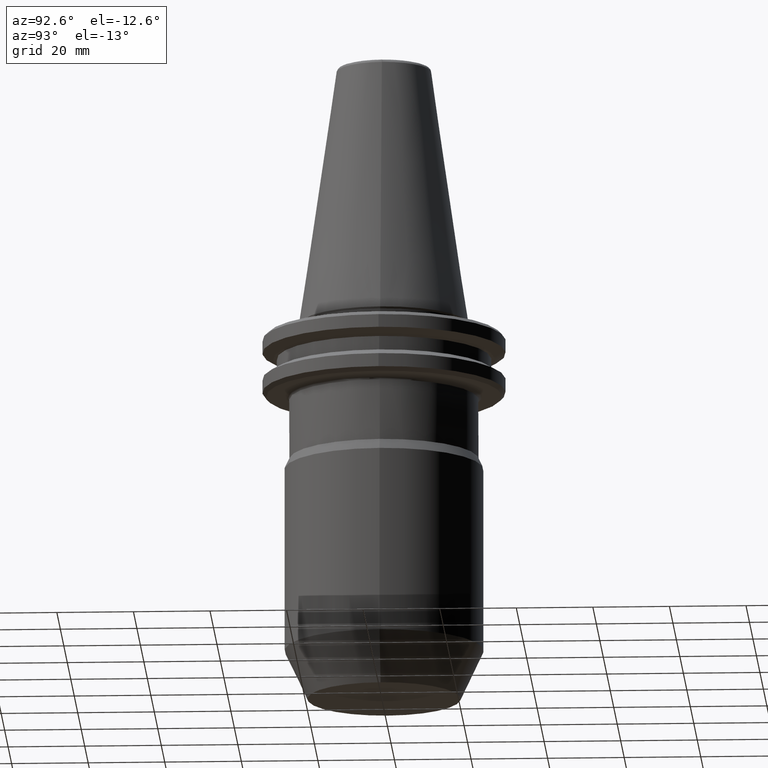
[diagram: clean part render]
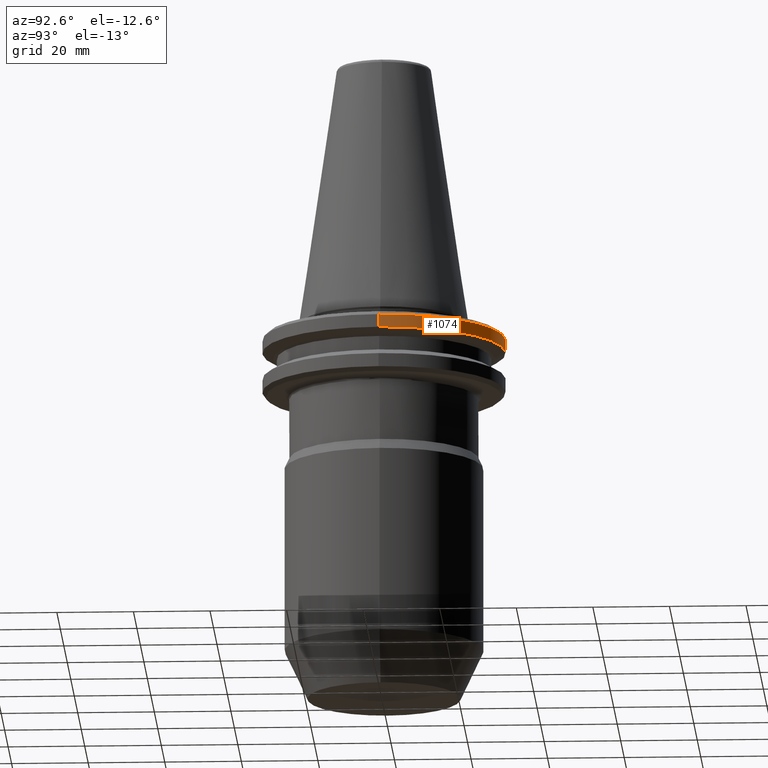
[diagram: same view with one face highlighted and labeled with its STEP entity id]
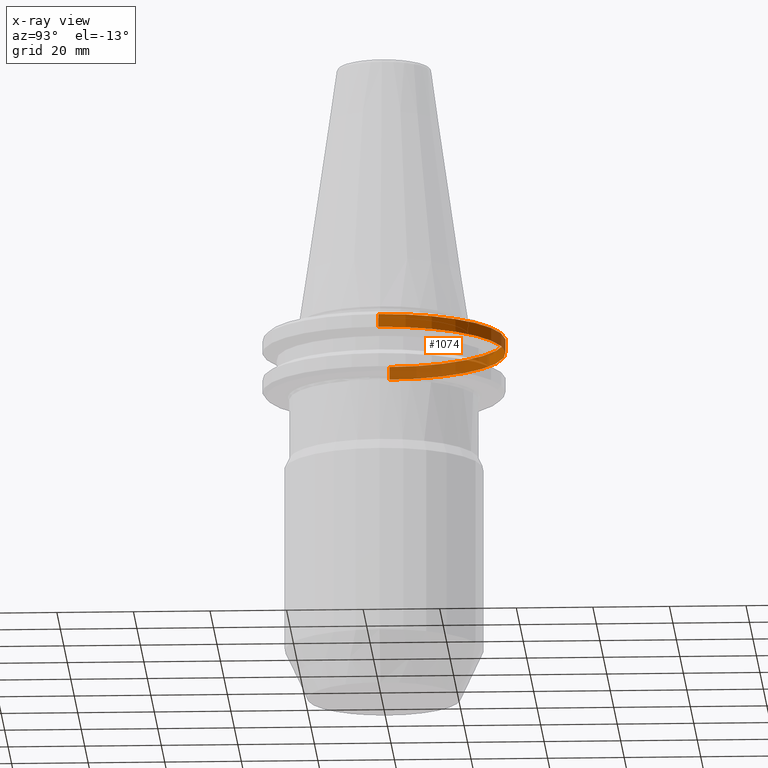
[diagram: x-ray of the same camera — body ghosted, the highlighted face saturated]
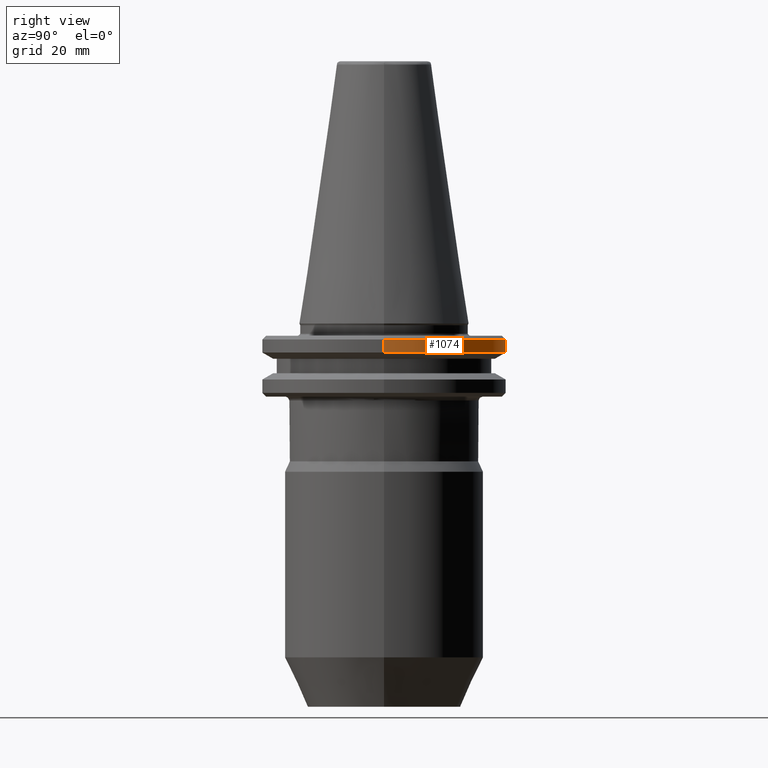
[diagram: same view with one face highlighted and labeled with its STEP entity id]
A machine part, auxiliary view. The second image highlights one B-rep face of the part: STEP entity #1074.
The next image is the same camera in x-ray: the body ghosted, the highlighted face saturated — about 42% of this face is hidden behind the body in this view.
A second angle (right view) of the same face is appended — the face is thin or edge-on in the first view.
In plain terms, the highlighted cylindrical surface (partial cylindrical patch) has radius 31.75 mm, axis along (0, 0, 1).
Its self-contained STEP definition (entity closure, byte-faithful):
#49 = EDGE_CURVE ( 'NONE', #291, #865, #886, .T. ) ;
#51 = VERTEX_POINT ( 'NONE', #147 ) ;
#71 = CARTESIAN_POINT ( 'NONE',  ( 31.74999999999983300, 0.0000000000000000000, -4.199999999999926500 ) ) ;
#115 = DIRECTION ( 'NONE',  ( 0.0000000000000000000, 0.0000000000000000000, 1.000000000000000000 ) ) ;
#147 = CARTESIAN_POINT ( 'NONE',  ( 31.75000000000000000, 0.0000000000000000000, -7.578163357943284800 ) ) ;
#185 = EDGE_CURVE ( 'NONE', #865, #1163, #714, .T. ) ;
#208 = EDGE_CURVE ( 'NONE', #51, #1163, #1135, .T. ) ;
#291 = VERTEX_POINT ( 'NONE', #1122 ) ;
#329 = VECTOR ( 'NONE', #1209, 1000.000000000000000 ) ;
#374 = ORIENTED_EDGE ( 'NONE', *, *, #49, .T. ) ;
#396 = ORIENTED_EDGE ( 'NONE', *, *, #185, .T. ) ;
#401 = CYLINDRICAL_SURFACE ( 'NONE', #1356, 31.75000000000000000 ) ;
#408 = AXIS2_PLACEMENT_3D ( 'NONE', #1414, #520, #1287 ) ;
#455 = DIRECTION ( 'NONE',  ( 1.000000000000000000, 0.0000000000000000000, 0.0000000000000000000 ) ) ;
#520 = DIRECTION ( 'NONE',  ( -0.0000000000000000000, -0.0000000000000000000, -1.000000000000000000 ) ) ;
#566 = EDGE_LOOP ( 'NONE', ( #923, #374, #396, #867 ) ) ;
#614 = AXIS2_PLACEMENT_3D ( 'NONE', #721, #1093, #1586 ) ;
#671 = EDGE_CURVE ( 'NONE', #291, #51, #1446, .T. ) ;
#688 = CARTESIAN_POINT ( 'NONE',  ( -31.75000000000000000, 3.888253587292846500E-015, 113.5216080541959500 ) ) ;
#714 = CIRCLE ( 'NONE', #614, 31.74999999999983300 ) ;
#721 = CARTESIAN_POINT ( 'NONE',  ( 0.0000000000000000000, 0.0000000000000000000, -4.199999999999926500 ) ) ;
#785 = CARTESIAN_POINT ( 'NONE',  ( 0.0000000000000000000, 0.0000000000000000000, 113.5216080541959500 ) ) ;
#865 = VERTEX_POINT ( 'NONE', #1376 ) ;
#867 = ORIENTED_EDGE ( 'NONE', *, *, #208, .F. ) ;
#886 = LINE ( 'NONE', #688, #329 ) ;
#923 = ORIENTED_EDGE ( 'NONE', *, *, #671, .F. ) ;
#1074 = ADVANCED_FACE ( 'NONE', ( #1094 ), #401, .T. ) ;
#1093 = DIRECTION ( 'NONE',  ( -0.0000000000000000000, -0.0000000000000000000, -1.000000000000000000 ) ) ;
#1094 = FACE_OUTER_BOUND ( 'NONE', #566, .T. ) ;
#1122 = CARTESIAN_POINT ( 'NONE',  ( -31.75000000000000000, 3.888253587292846500E-015, -7.578163357943284800 ) ) ;
#1135 = LINE ( 'NONE', #1227, #1174 ) ;
#1163 = VERTEX_POINT ( 'NONE', #71 ) ;
#1174 = VECTOR ( 'NONE', #1353, 1000.000000000000000 ) ;
#1209 = DIRECTION ( 'NONE',  ( 0.0000000000000000000, 0.0000000000000000000, 1.000000000000000000 ) ) ;
#1227 = CARTESIAN_POINT ( 'NONE',  ( 31.75000000000000000, 0.0000000000000000000, 113.5216080541959500 ) ) ;
#1287 = DIRECTION ( 'NONE',  ( 1.000000000000000000, 0.0000000000000000000, 0.0000000000000000000 ) ) ;
#1353 = DIRECTION ( 'NONE',  ( 0.0000000000000000000, 0.0000000000000000000, 1.000000000000000000 ) ) ;
#1356 = AXIS2_PLACEMENT_3D ( 'NONE', #785, #115, #455 ) ;
#1376 = CARTESIAN_POINT ( 'NONE',  ( -31.74999999999983300, 3.888253587292836200E-015, -4.199999999999926500 ) ) ;
#1414 = CARTESIAN_POINT ( 'NONE',  ( 0.0000000000000000000, 0.0000000000000000000, -7.578163357943284800 ) ) ;
#1446 = CIRCLE ( 'NONE', #408, 31.75000000000000000 ) ;
#1586 = DIRECTION ( 'NONE',  ( -1.000000000000000000, 0.0000000000000000000, 0.0000000000000000000 ) ) ;